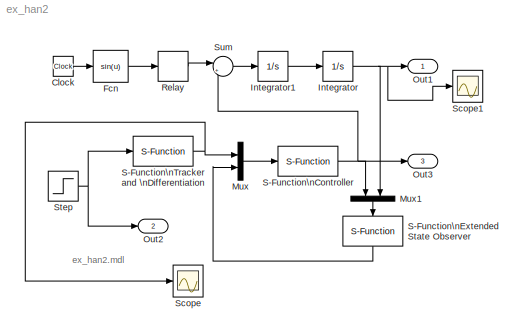
MODEL ex_han2
KIND model
CONFIG PreLoadFcn = r=10; h=0.01; T=0.01; bet=[100,65,80]; bet1=[100,10]; aa=[0.75,1.25]; d=0; b=1;
BLOCK [Clock] Clock
  SID = 1
BLOCK [Fcn] Fcn
  Expr = sin(u)
  SID = 2
BLOCK [Integrator] Integrator
  Ports = [1, 1]
  SID = 3
BLOCK [Integrator] Integrator1
  Ports = [1, 1]
  SID = 4
BLOCK [Mux] Mux
  DisplayOption = bar
  Inputs = 2
  Ports = [2, 1]
  SID = 5
BLOCK [Mux] Mux1
  DisplayOption = bar
  Inputs = 2
  Ports = [2, 1]
  SID = 6
BLOCK [Outport] Out1
  IconDisplay = Port number
  SID = 13
BLOCK [Outport] Out2
  IconDisplay = Port number
  Port = 2
  SID = 14
BLOCK [Outport] Out3
  IconDisplay = Port number
  Port = 3
  SID = 15
BLOCK [Relay] Relay
  SID = 7
BLOCK [S-Function] S-Function\nController
  EnableBusSupport = off
  FunctionName = han_ctrl
  Parameters = aa,bet1,b,d
  Ports = [1, 1]
  SID = 8
BLOCK [S-Function] S-Function\nExtended State Observer
  EnableBusSupport = off
  FunctionName = han_eso
  Parameters = d,bet,b,T
  Ports = [1, 1]
  SID = 9
BLOCK [S-Function] S-Function\nTracker and \nDifferentiation
  EnableBusSupport = off
  FunctionName = han_td
  Parameters = r,h,T
  Ports = [1, 1]
  SID = 10
BLOCK [Scope] Scope
  Floating = off
  NumInputPorts = 1
  Ports = [1]
  SID = 17
  ShowLegends = off
BLOCK [Scope] Scope1
  Floating = off
  NumInputPorts = 1
  Ports = [1]
  SID = 19
  SaveName = ScopeData1
  ShowLegends = off
  YMax = 10.003
  YMin = 9.9965
BLOCK [Step] Step
  After = 10
  SID = 18
  SampleTime = 0
BLOCK [Sum] Sum
  IconShape = round
  Inputs = |++
  Ports = [2, 1]
  SID = 12
ANNOTATION (root): ex_han2.mdl
LINE Clock:1 -> Fcn:1
LINE Fcn:1 -> Relay:1
LINE Integrator1:1 -> Integrator:1
NET Integrator:1 -> Mux1:2, Out1:1, Scope1:1
LINE Mux1:1 -> S-Function\nExtended State Observer:1
LINE Mux:1 -> S-Function\nController:1
LINE Relay:1 -> Sum:1
NET S-Function\nController:1 -> Mux1:1, Out3:1, Sum:2
LINE S-Function\nExtended State Observer:1 -> Mux:2
NET S-Function\nTracker and \nDifferentiation:1 -> Mux:1, Scope:1
NET Step:1 -> Out2:1, S-Function\nTracker and \nDifferentiation:1
LINE Sum:1 -> Integrator1:1
note: NET lines group one-source signal fan-out (src -> all destinations, sorted); 1:1 wires keep LINE
